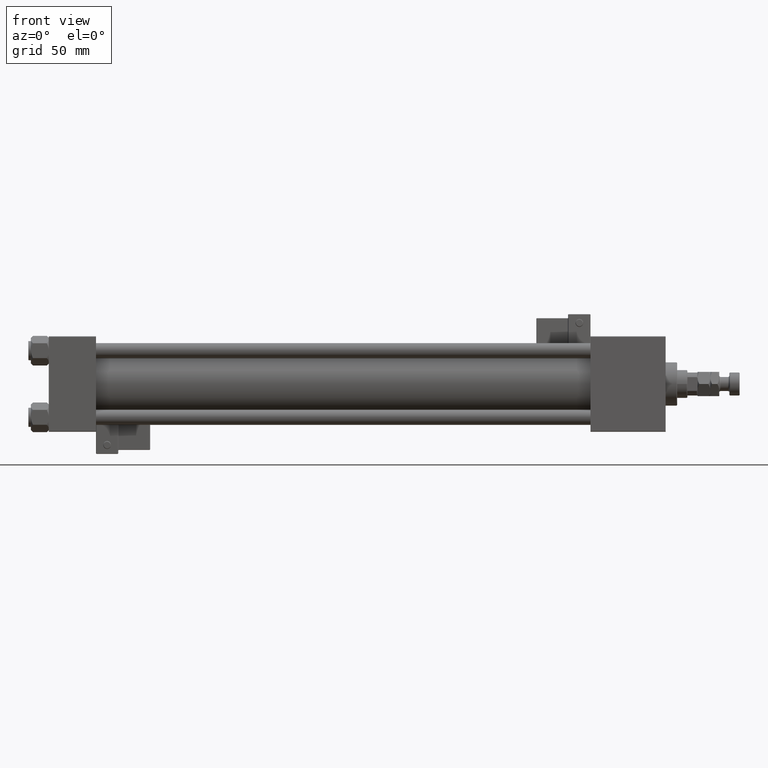
[diagram: clean part render]
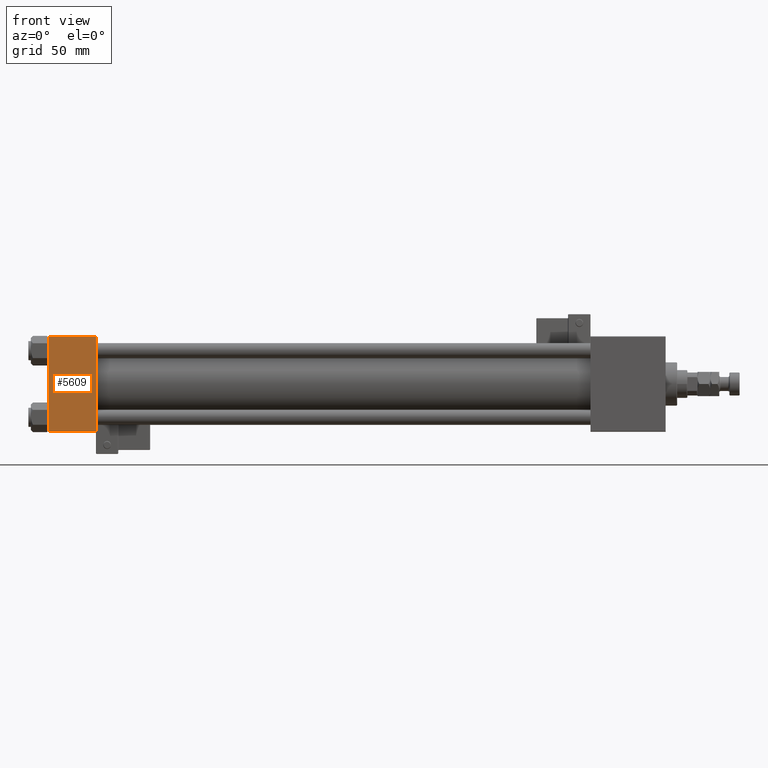
[diagram: same view with one face highlighted and labeled with its STEP entity id]
A machine part, front view. The second image highlights one B-rep face of the part: STEP entity #5609.
In plain terms, the highlighted planar face has unit normal (0, 1, 0).
Its self-contained STEP definition (entity closure, byte-faithful):
#216 = EDGE_CURVE ( 'NONE', #16926, #44894, #44631, .T. ) ;
#858 = DIRECTION ( 'NONE',  ( 0.000000000000000000, -9.251858538542971581E-17, 1.000000000000000000 ) ) ;
#1523 = CARTESIAN_POINT ( 'NONE',  ( 37.00000000000000000, -37.50000000000000711, 36.99999999999999289 ) ) ;
#3247 = CARTESIAN_POINT ( 'NONE',  ( 37.00000000000000000, -37.50000000000000711, 37.49999999999999289 ) ) ;
#5609 = ADVANCED_FACE ( 'NONE', ( #31002 ), #42521, .F. ) ;
#7400 = VERTEX_POINT ( 'NONE', #47645 ) ;
#7621 = EDGE_CURVE ( 'NONE', #44894, #25986, #21834, .T. ) ;
#9779 = VECTOR ( 'NONE', #13590, 1000.000000000000000 ) ;
#10676 = ORIENTED_EDGE ( 'NONE', *, *, #50605, .F. ) ;
#11124 = ORIENTED_EDGE ( 'NONE', *, *, #14432, .T. ) ;
#11622 = EDGE_LOOP ( 'NONE', ( #11714, #21719, #10676, #11124 ) ) ;
#11714 = ORIENTED_EDGE ( 'NONE', *, *, #216, .T. ) ;
#13143 = VECTOR ( 'NONE', #20793, 1000.000000000000000 ) ;
#13590 = DIRECTION ( 'NONE',  ( 1.000000000000000000, 0.000000000000000000, 0.000000000000000000 ) ) ;
#14432 = EDGE_CURVE ( 'NONE', #7400, #16926, #43707, .T. ) ;
#16926 = VERTEX_POINT ( 'NONE', #42799 ) ;
#17567 = CARTESIAN_POINT ( 'NONE',  ( 37.00000000000000000, -37.50000000000000711, 37.49999999999999289 ) ) ;
#17707 = CARTESIAN_POINT ( 'NONE',  ( 37.00000000000000000, -37.50000000000000000, -37.00000000000003553 ) ) ;
#18113 = DIRECTION ( 'NONE',  ( -0.000000000000000000, 1.000000000000000000, 9.251858538542971581E-17 ) ) ;
#19966 = DIRECTION ( 'NONE',  ( 0.000000000000000000, 9.251858538542971581E-17, -1.000000000000000000 ) ) ;
#20793 = DIRECTION ( 'NONE',  ( 0.000000000000000000, 9.251858538542971581E-17, -1.000000000000000000 ) ) ;
#21042 = LINE ( 'NONE', #3247, #39645 ) ;
#21719 = ORIENTED_EDGE ( 'NONE', *, *, #7621, .T. ) ;
#21834 = LINE ( 'NONE', #17707, #9779 ) ;
#23806 = CARTESIAN_POINT ( 'NONE',  ( 0.000000000000000000, -37.50000000000000711, 37.49999999999999289 ) ) ;
#25986 = VERTEX_POINT ( 'NONE', #38041 ) ;
#27269 = DIRECTION ( 'NONE',  ( -1.000000000000000000, 0.000000000000000000, 0.000000000000000000 ) ) ;
#30899 = AXIS2_PLACEMENT_3D ( 'NONE', #17567, #18113, #858 ) ;
#31002 = FACE_OUTER_BOUND ( 'NONE', #11622, .T. ) ;
#38041 = CARTESIAN_POINT ( 'NONE',  ( 37.00000000000000000, -37.50000000000000000, -37.00000000000003553 ) ) ;
#38324 = CARTESIAN_POINT ( 'NONE',  ( 0.000000000000000000, -37.50000000000000000, -37.00000000000003553 ) ) ;
#39645 = VECTOR ( 'NONE', #19966, 1000.000000000000000 ) ;
#40747 = VECTOR ( 'NONE', #27269, 1000.000000000000000 ) ;
#42521 = PLANE ( 'NONE',  #30899 ) ;
#42799 = CARTESIAN_POINT ( 'NONE',  ( 0.000000000000000000, -37.50000000000000711, 36.99999999999999289 ) ) ;
#43707 = LINE ( 'NONE', #1523, #40747 ) ;
#44631 = LINE ( 'NONE', #23806, #13143 ) ;
#44894 = VERTEX_POINT ( 'NONE', #38324 ) ;
#47645 = CARTESIAN_POINT ( 'NONE',  ( 37.00000000000000000, -37.50000000000000711, 36.99999999999999289 ) ) ;
#50605 = EDGE_CURVE ( 'NONE', #7400, #25986, #21042, .T. ) ;